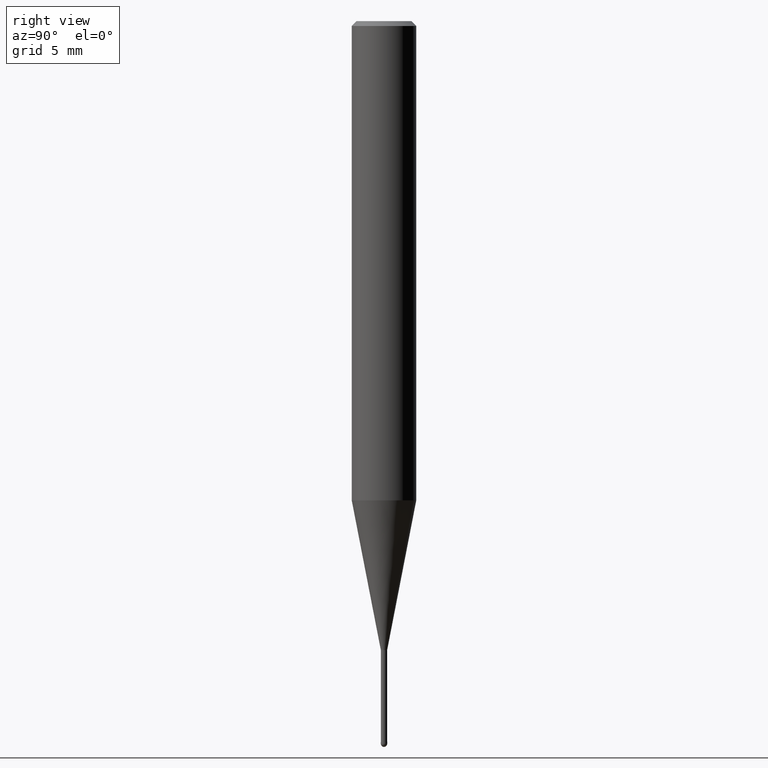
[diagram: clean part render]
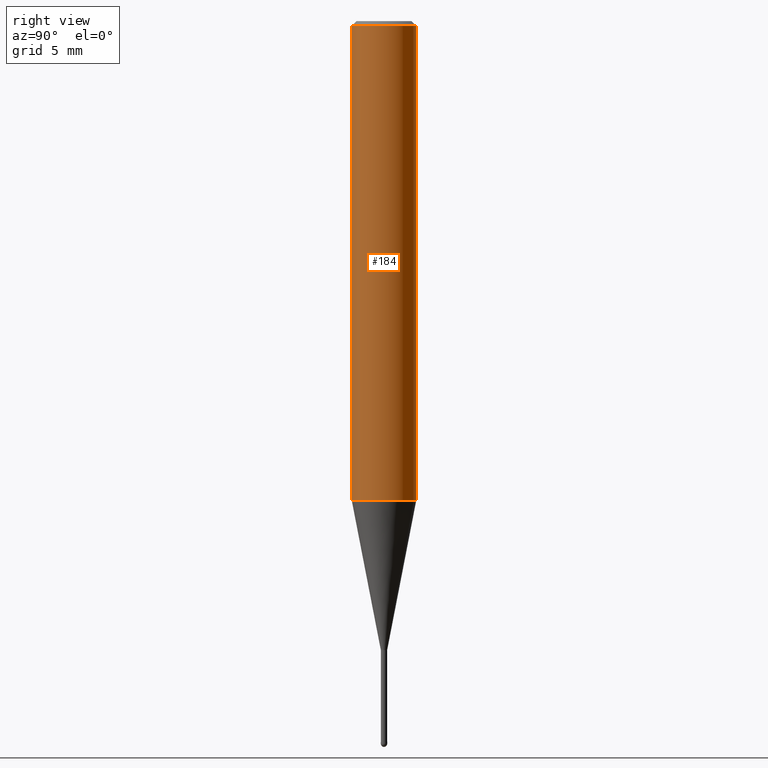
[diagram: same view with one face highlighted and labeled with its STEP entity id]
A machine part, right view. The second image highlights one B-rep face of the part: STEP entity #184.
In plain terms, the highlighted cylindrical surface (edge-blend (fillet) strip) has radius 2 mm, axis along (-0, -0, 1).
Its self-contained STEP definition (entity closure, byte-faithful):
#94=VERTEX_POINT('',#235);
#100=EDGE_CURVE('',#158,#94,#241,.T.);
#102=EDGE_CURVE('',#212,#204,#243,.T.);
#120=EDGE_CURVE('',#158,#212,#265,.T.);
#146=EDGE_CURVE('',#204,#94,#294,.T.);
#158=VERTEX_POINT('',#308);
#184=ADVANCED_FACE('',(#338),#339,.T.);
#204=VERTEX_POINT('',#360);
#212=VERTEX_POINT('',#369);
#235=CARTESIAN_POINT('',(2.44921270764475E-016,-2.0,-0.300000000000001));
#241=CIRCLE('',#393,2.0);
#243=CIRCLE('',#396,2.0);
#265=LINE('',#422,#423);
#294=LINE('',#460,#461);
#308=CARTESIAN_POINT('',(0.0,2.0,-0.300000000000001));
#338=FACE_OUTER_BOUND('',#521,.T.);
#339=CYLINDRICAL_SURFACE('',#522,2.0);
#360=CARTESIAN_POINT('',(2.44921270764475E-016,-2.0,-29.714));
#369=CARTESIAN_POINT('',(0.0,2.0,-29.714));
#393=AXIS2_PLACEMENT_3D('',#562,#563,#564);
#396=AXIS2_PLACEMENT_3D('',#565,#566,#567);
#422=CARTESIAN_POINT('',(-2.44921270764475E-016,2.0,-15.007));
#423=VECTOR('',#599,1.0);
#460=CARTESIAN_POINT('',(2.44921270764475E-016,-2.0,-15.007));
#461=VECTOR('',#635,1.0);
#521=EDGE_LOOP('',(#702,#703,#704,#705));
#522=AXIS2_PLACEMENT_3D('',#706,#707,#708);
#562=CARTESIAN_POINT('',(0.0,0.0,-0.300000000000001));
#563=DIRECTION('',(0.0,0.0,-1.0));
#564=DIRECTION('',(0.0,1.0,0.0));
#565=CARTESIAN_POINT('',(0.0,0.0,-29.714));
#566=DIRECTION('',(0.0,0.0,-1.0));
#567=DIRECTION('',(0.0,1.0,0.0));
#599=DIRECTION('',(0.0,0.0,-1.0));
#635=DIRECTION('',(-0.0,-0.0,1.0));
#702=ORIENTED_EDGE('',*,*,#120,.F.);
#703=ORIENTED_EDGE('',*,*,#100,.T.);
#704=ORIENTED_EDGE('',*,*,#146,.F.);
#705=ORIENTED_EDGE('',*,*,#102,.F.);
#706=CARTESIAN_POINT('',(0.0,0.0,-15.007));
#707=DIRECTION('',(-0.0,-0.0,1.0));
#708=DIRECTION('',(0.0,1.0,0.0));